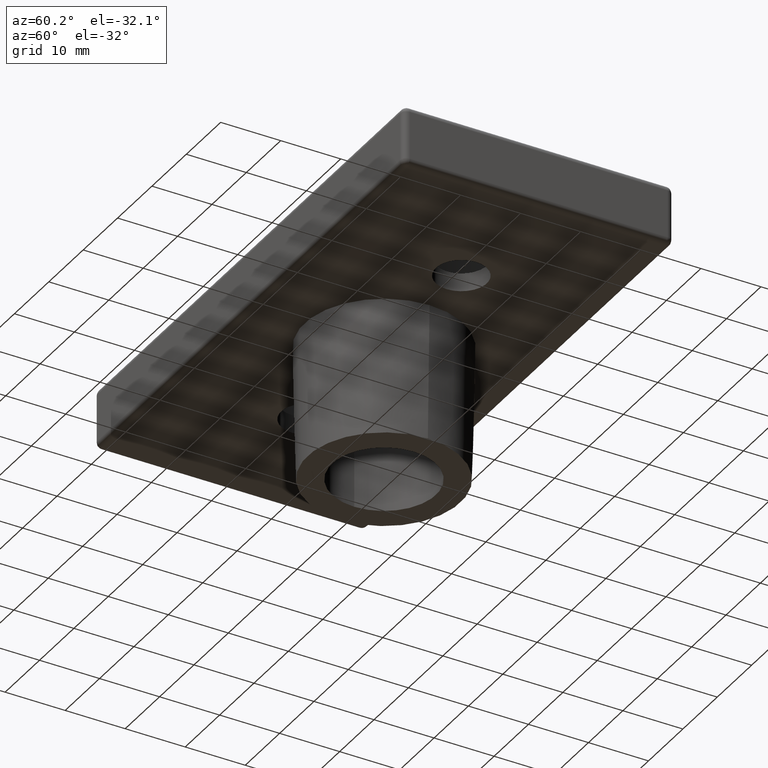
[diagram: clean part render]
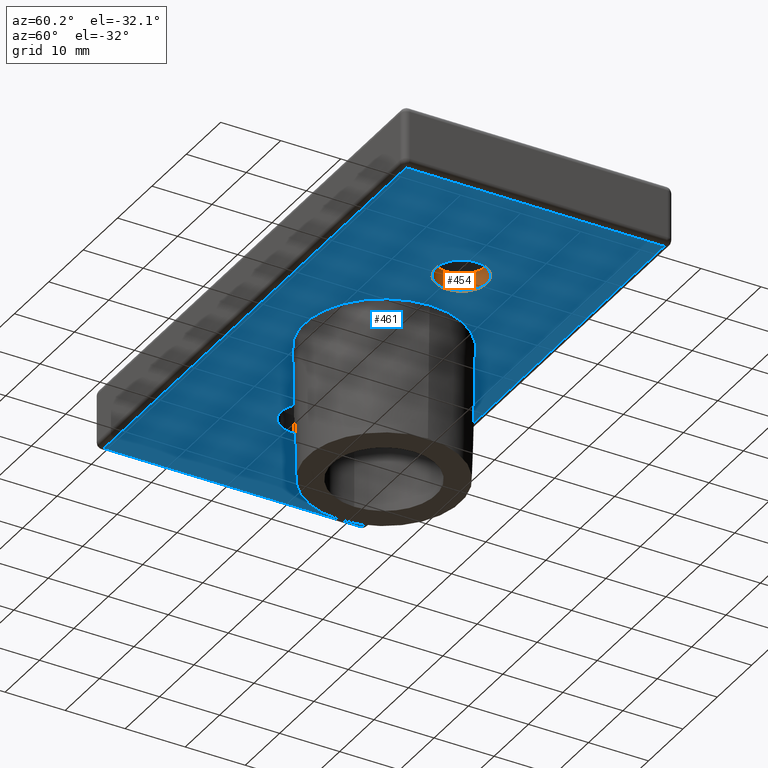
[diagram: same view with the hole feature highlighted: cylindrical wall and planar end face, labeled with their STEP entity ids]
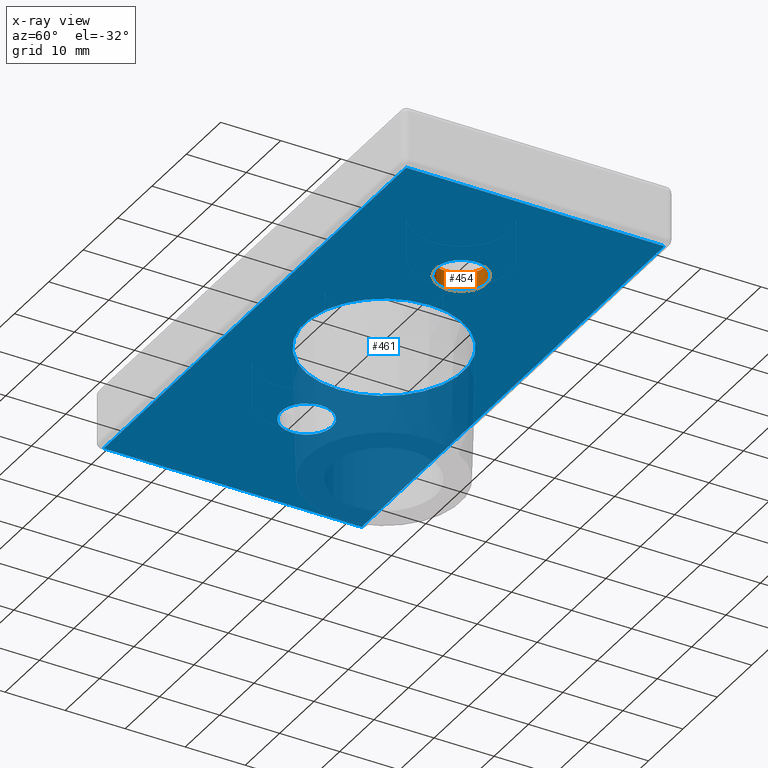
[diagram: x-ray of the same camera — body ghosted, the hole faces saturated]
A machine part, auxiliary view. The highlighted faces form one hole feature of diameter 8.5 mm: the cylindrical wall (entity #454, orange) and its adjacent planar end face (entity #461, blue) — they share a circular edge in the B-rep.
The next image is the same camera in x-ray (body ghosted, the hole faces saturated) — the bore reads through the body.
Wall:
#85=FACE_BOUND('',#140,.T.);
#100=FACE_OUTER_BOUND('',#139,.T.);
#139=EDGE_LOOP('',(#321));
#140=EDGE_LOOP('',(#322));
#187=CIRCLE('',#498,4.25);
#188=CIRCLE('',#499,4.25);
#223=VERTEX_POINT('',#744);
#224=VERTEX_POINT('',#746);
#259=EDGE_CURVE('',#223,#223,#187,.T.);
#260=EDGE_CURVE('',#224,#224,#188,.T.);
#321=ORIENTED_EDGE('',*,*,#259,.T.);
#322=ORIENTED_EDGE('',*,*,#260,.T.);
#435=CYLINDRICAL_SURFACE('',#497,4.25);
#454=ADVANCED_FACE('',(#100,#85),#435,.F.);
#497=AXIS2_PLACEMENT_3D('',#743,#580,#581);
#498=AXIS2_PLACEMENT_3D('',#745,#582,#583);
#499=AXIS2_PLACEMENT_3D('',#747,#584,#585);
#580=DIRECTION('center_axis',(0.,0.,1.));
#581=DIRECTION('ref_axis',(0.,1.,0.));
#582=DIRECTION('center_axis',(0.,0.,-1.));
#583=DIRECTION('ref_axis',(-1.,0.,0.));
#584=DIRECTION('center_axis',(0.,0.,1.));
#585=DIRECTION('ref_axis',(-1.,0.,0.));
#743=CARTESIAN_POINT('Origin',(-22.2071067811865,0.,-0.29289322881344));
#744=CARTESIAN_POINT('',(-17.9571067811865,0.,-0.292893218813443));
#745=CARTESIAN_POINT('Origin',(-22.2071067811865,0.,-0.292893218813443));
#746=CARTESIAN_POINT('',(-17.9571067811865,0.,2.70710678118655));
#747=CARTESIAN_POINT('Origin',(-22.2071067811865,0.,2.70710678118655));
End face:
#39=LINE('',#797,#63);
#40=LINE('',#799,#64);
#41=LINE('',#801,#65);
#42=LINE('',#802,#66);
#63=VECTOR('',#624,88.);
#64=VECTOR('',#625,43.);
#65=VECTOR('',#626,88.);
#66=VECTOR('',#627,43.);
#77=PLANE('',#510);
#88=FACE_BOUND('',#150,.T.);
#89=FACE_BOUND('',#151,.T.);
#90=FACE_BOUND('',#152,.T.);
#107=FACE_OUTER_BOUND('',#149,.T.);
#149=EDGE_LOOP('',(#343,#344,#345,#346));
#150=EDGE_LOOP('',(#347));
#151=EDGE_LOOP('',(#348));
#152=EDGE_LOOP('',(#349));
#184=CIRCLE('',#493,13.25);
#187=CIRCLE('',#498,4.25);
#191=CIRCLE('',#504,4.25);
#220=VERTEX_POINT('',#736);
#223=VERTEX_POINT('',#744);
#227=VERTEX_POINT('',#754);
#245=VERTEX_POINT('',#795);
#246=VERTEX_POINT('',#796);
#247=VERTEX_POINT('',#798);
#248=VERTEX_POINT('',#800);
#256=EDGE_CURVE('',#220,#220,#184,.T.);
#259=EDGE_CURVE('',#223,#223,#187,.T.);
#263=EDGE_CURVE('',#227,#227,#191,.T.);
#281=EDGE_CURVE('',#245,#246,#39,.T.);
#282=EDGE_CURVE('',#246,#247,#40,.T.);
#283=EDGE_CURVE('',#247,#248,#41,.T.);
#284=EDGE_CURVE('',#248,#245,#42,.T.);
#343=ORIENTED_EDGE('',*,*,#281,.T.);
#344=ORIENTED_EDGE('',*,*,#282,.T.);
#345=ORIENTED_EDGE('',*,*,#283,.T.);
#346=ORIENTED_EDGE('',*,*,#284,.T.);
#347=ORIENTED_EDGE('',*,*,#256,.T.);
#348=ORIENTED_EDGE('',*,*,#259,.F.);
#349=ORIENTED_EDGE('',*,*,#263,.F.);
#461=ADVANCED_FACE('',(#107,#88,#89,#90),#77,.T.);
#493=AXIS2_PLACEMENT_3D('',#737,#572,#573);
#498=AXIS2_PLACEMENT_3D('',#745,#582,#583);
#504=AXIS2_PLACEMENT_3D('',#755,#594,#595);
#510=AXIS2_PLACEMENT_3D('',#794,#622,#623);
#572=DIRECTION('center_axis',(0.,0.,1.));
#573=DIRECTION('ref_axis',(1.,0.,0.));
#582=DIRECTION('center_axis',(0.,0.,-1.));
#583=DIRECTION('ref_axis',(-1.,0.,0.));
#594=DIRECTION('center_axis',(0.,0.,-1.));
#595=DIRECTION('ref_axis',(-1.,0.,0.));
#622=DIRECTION('center_axis',(0.,0.,-1.));
#623=DIRECTION('ref_axis',(-1.,0.,0.));
#624=DIRECTION('',(-1.,0.,0.));
#625=DIRECTION('',(0.,1.,0.));
#626=DIRECTION('',(1.,0.,0.));
#627=DIRECTION('',(0.,-1.,0.));
#736=CARTESIAN_POINT('',(-31.4571067811866,0.,-0.292893218813449));
#737=CARTESIAN_POINT('Origin',(-44.7071067811866,0.,-0.292893218813449));
#744=CARTESIAN_POINT('',(-17.9571067811865,0.,-0.292893218813443));
#745=CARTESIAN_POINT('Origin',(-22.2071067811865,0.,-0.292893218813443));
#754=CARTESIAN_POINT('',(-62.9571067811865,0.,-0.292893218813443));
#755=CARTESIAN_POINT('Origin',(-67.2071067811865,0.,-0.292893218813443));
#794=CARTESIAN_POINT('Origin',(3.69289321881352,-23.65,-0.292893218813449));
#795=CARTESIAN_POINT('',(-0.707106781186549,-21.5,-0.292893218813451));
#796=CARTESIAN_POINT('',(-88.7071067811865,-21.5,-0.292893218813451));
#797=CARTESIAN_POINT('',(-0.70710678118655,-21.5,-0.292893218813449));
#798=CARTESIAN_POINT('',(-88.7071067811865,21.5,-0.292893218813451));
#799=CARTESIAN_POINT('',(-88.7071067811865,-21.5,-0.292893218813449));
#800=CARTESIAN_POINT('',(-0.707106781186493,21.5,-0.292893218318756));
#801=CARTESIAN_POINT('',(-88.7071067811865,21.5,-0.292893218813449));
#802=CARTESIAN_POINT('',(-0.70710678118655,21.5,-0.292893218813449));